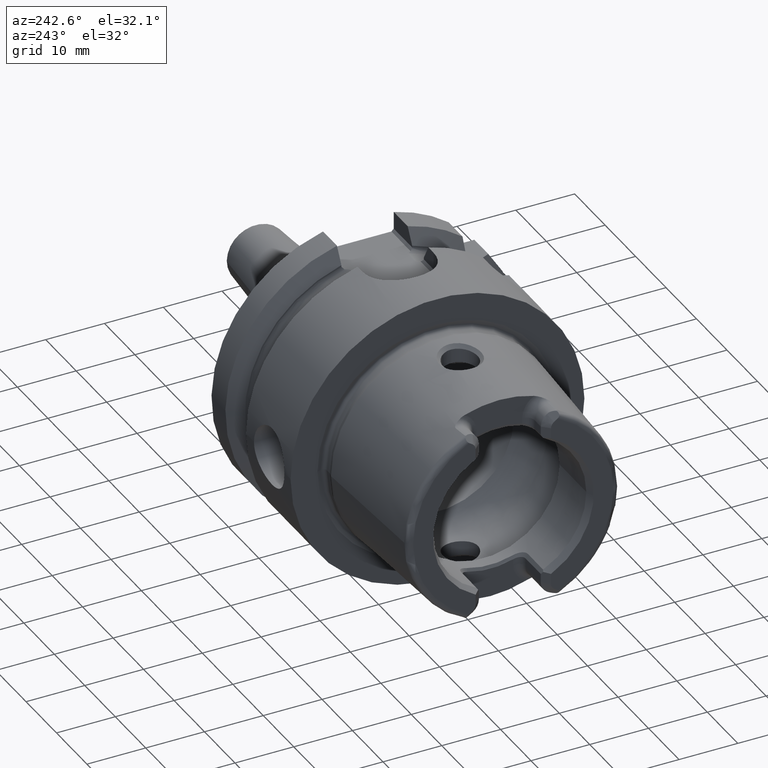
[diagram: clean part render]
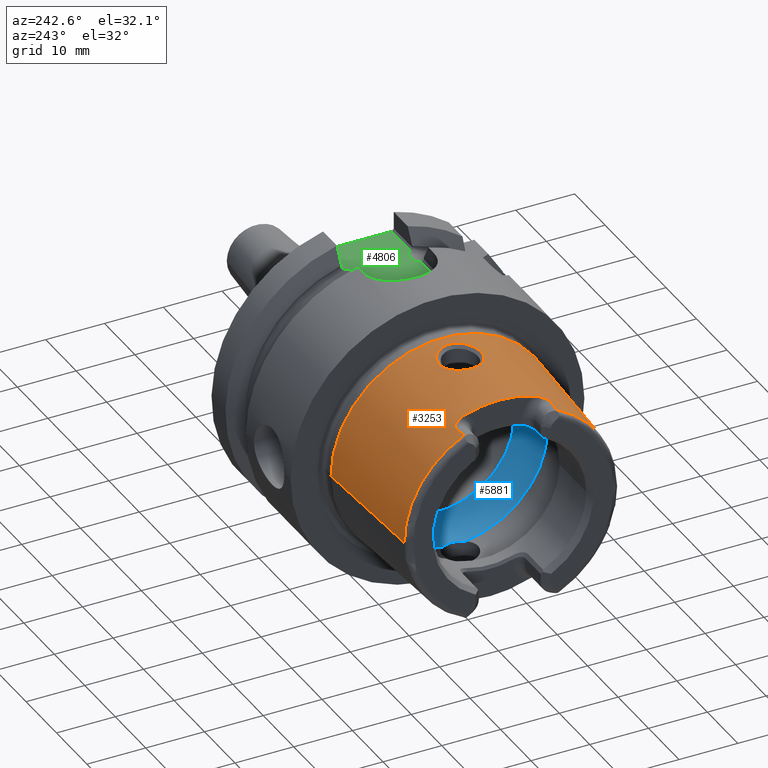
[diagram: same view with three faces highlighted in distinct colors, each labeled with its STEP entity id]
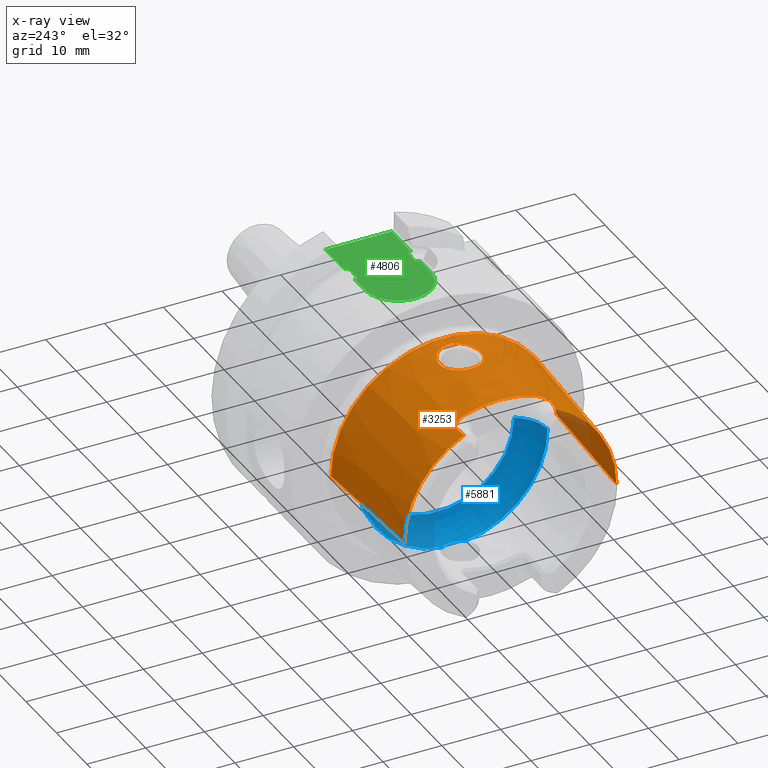
[diagram: x-ray of the same camera — body ghosted, the three highlighted faces saturated]
A machine part, auxiliary view with three faces highlighted in distinct colors.
The next image is the same camera in x-ray (body ghosted, the three faces saturated) — at least one of them is partly hidden behind the body in this view.
Their STEP definitions:

[orange] entity #3253 — the highlighted conical surface has half-angle 2.868 deg.
#2=CARTESIAN_POINT('',(-2.395003724237E1,-7.848512546022E0,1.626E1));
#3=CARTESIAN_POINT('',(-2.357924685714E1,-7.891247063705E0,1.626E1));
#4=CARTESIAN_POINT('',(-2.283344964494E1,-7.976635944030E0,1.626E1));
#5=CARTESIAN_POINT('',(-2.207922143332E1,-8.061880664518E0,1.626E1));
#6=CARTESIAN_POINT('',(-2.17E1,-8.104470797584E0,1.626E1));
#8=CARTESIAN_POINT('',(-2.03E1,0.E0,0.E0));
#9=DIRECTION('',(1.E0,0.E0,0.E0));
#10=DIRECTION('',(0.E0,3.252089046527E-1,9.456421988969E-1));
#11=AXIS2_PLACEMENT_3D('',#8,#9,#10);
#13=CARTESIAN_POINT('',(-2.17E1,8.104470797584E0,1.626E1));
#14=CARTESIAN_POINT('',(-2.207921342399E1,8.061881564041E0,1.626E1));
#15=CARTESIAN_POINT('',(-2.283343362880E1,7.976637765712E0,1.626E1));
#16=CARTESIAN_POINT('',(-2.357923885045E1,7.891247986496E0,1.626E1));
#17=CARTESIAN_POINT('',(-2.395003724237E1,7.848512546022E0,1.626E1));
#19=CARTESIAN_POINT('',(-2.E0,0.E0,0.E0));
#20=DIRECTION('',(1.E0,0.E0,0.E0));
#21=DIRECTION('',(0.E0,1.E0,0.E0));
#22=AXIS2_PLACEMENT_3D('',#19,#20,#21);
#24=CARTESIAN_POINT('',(-1.109929870960E1,-3.014221416256E-9,1.869887476944E1));
#25=CARTESIAN_POINT('',(-1.109945925242E1,1.886319535952E-1,1.869886672624E1));
#26=CARTESIAN_POINT('',(-1.107009168020E1,5.664763956957E-1,1.869480469033E1));
#27=CARTESIAN_POINT('',(-1.092852645341E1,1.148622081174E0,1.867514320096E1));
#28=CARTESIAN_POINT('',(-1.068761462296E1,1.704920402697E0,1.864430827966E1));
#29=CARTESIAN_POINT('',(-1.035800427398E1,2.210391705650E0,1.860721858945E1));
#30=CARTESIAN_POINT('',(-9.956571457299E0,2.646528342491E0,1.856998438485E1));
#31=CARTESIAN_POINT('',(-9.482180445587E0,3.015935220411E0,1.853715943967E1));
#32=CARTESIAN_POINT('',(-8.954999291132E0,3.300109899598E0,1.851503858938E1));
#33=CARTESIAN_POINT('',(-8.389140640557E0,3.493968846930E0,1.850796335816E1));
#34=CARTESIAN_POINT('',(-7.797320683708E0,3.593006921983E0,1.851902489885E1));
#35=CARTESIAN_POINT('',(-7.195102304437E0,3.593647232189E0,1.854964302437E1));
#36=CARTESIAN_POINT('',(-6.600491430740E0,3.495005174178E0,1.859898554839E1));
#37=CARTESIAN_POINT('',(-6.030596486868E0,3.299291684191E0,1.866403807124E1));
#38=CARTESIAN_POINT('',(-5.501482393751E0,3.011836541822E0,1.873990477193E1));
#39=CARTESIAN_POINT('',(-5.029104687073E0,2.639928583606E0,1.882027271501E1));
#40=CARTESIAN_POINT('',(-4.631634616367E0,2.203529810045E0,1.889690659120E1));
#41=CARTESIAN_POINT('',(-4.305482049942E0,1.697229296807E0,1.896603905152E1));
#42=CARTESIAN_POINT('',(-4.067927972751E0,1.141444662126E0,1.901987475357E1));
#43=CARTESIAN_POINT('',(-3.929055735054E0,5.612533791160E-1,1.905280029071E1));
#44=CARTESIAN_POINT('',(-3.900610911648E0,1.865123193107E-1,1.905953154444E1));
#45=CARTESIAN_POINT('',(-3.900703803433E0,4.688328467960E-10,1.905952689056E1));
#47=CARTESIAN_POINT('',(-3.900703803433E0,4.688328467960E-10,1.905952689056E1));
#48=CARTESIAN_POINT('',(-3.900565316566E0,-1.869068172543E-1,1.905953382875E1));
#49=CARTESIAN_POINT('',(-3.929209078756E0,-5.619643930347E-1,1.905275967237E1));
#50=CARTESIAN_POINT('',(-4.067587416071E0,-1.139939244924E0,1.901996042633E1));
#51=CARTESIAN_POINT('',(-4.304083353262E0,-1.694649477574E0,1.896633950966E1));
#52=CARTESIAN_POINT('',(-4.630377715431E0,-2.202039946174E0,1.889716591493E1));
#53=CARTESIAN_POINT('',(-5.030592742710E0,-2.641727212383E0,1.881996573115E1));
#54=CARTESIAN_POINT('',(-5.506115942833E0,-3.014998208087E0,1.873916244837E1));
#55=CARTESIAN_POINT('',(-6.036759347171E0,-3.302003787672E0,1.866323991975E1));
#56=CARTESIAN_POINT('',(-6.606224693834E0,-3.496380993107E0,1.859843104427E1));
#57=CARTESIAN_POINT('',(-7.200154597760E0,-3.594034785278E0,1.854930943768E1));
#58=CARTESIAN_POINT('',(-7.802229994140E0,-3.592594248023E0,1.851885498035E1));
#59=CARTESIAN_POINT('',(-8.394131860627E0,-3.492723564974E0,1.850794649148E1));
#60=CARTESIAN_POINT('',(-8.959854335096E0,-3.297955703516E0,1.851517847778E1));
#61=CARTESIAN_POINT('',(-9.485898814950E0,-3.013450655427E0,1.853737508929E1));
#62=CARTESIAN_POINT('',(-9.958289131427E0,-2.644672127726E0,1.857015107163E1));
#63=CARTESIAN_POINT('',(-1.035781579914E1,-2.210534337623E0,1.860719549656E1));
#64=CARTESIAN_POINT('',(-1.068684091883E1,-1.706221052324E0,1.864422260745E1));
#65=CARTESIAN_POINT('',(-1.092821591145E1,-1.149779213026E0,1.867509790374E1));
#66=CARTESIAN_POINT('',(-1.107015122039E1,-5.663437022187E-1,1.869481438399E1));
#67=CARTESIAN_POINT('',(-1.109940105467E1,-1.885312797170E-1,1.869886964195E1));
#68=CARTESIAN_POINT('',(-1.109929870960E1,-3.014221416256E-9,1.869887476944E1));
#254=CARTESIAN_POINT('',(-2.088194182380E1,7.65E0,1.652387464585E1));
#255=CARTESIAN_POINT('',(-2.078252967156E1,7.507241224245E0,1.659545558861E1));
#256=CARTESIAN_POINT('',(-2.061118229026E1,7.217898198343E0,1.673432166657E1));
#257=CARTESIAN_POINT('',(-2.042453343151E1,6.765088338183E0,1.693246351741E1));
#258=CARTESIAN_POINT('',(-2.032087894102E1,6.330896569896E0,1.710473583165E1));
#259=CARTESIAN_POINT('',(-2.03E1,6.061283482817E0,1.720184088309E1));
#260=CARTESIAN_POINT('',(-2.03E1,5.931150246788E0,1.724659405422E1));
#317=CARTESIAN_POINT('',(-2.395003724237E1,0.E0,0.E0));
#318=DIRECTION('',(1.E0,0.E0,0.E0));
#319=DIRECTION('',(0.E0,1.E0,0.E0));
#320=AXIS2_PLACEMENT_3D('',#317,#318,#319);
#391=CARTESIAN_POINT('',(-2.395003724237E1,0.E0,0.E0));
#392=DIRECTION('',(1.E0,0.E0,0.E0));
#393=DIRECTION('',(0.E0,-4.346977410045E-1,9.005764120637E-1));
#394=AXIS2_PLACEMENT_3D('',#391,#392,#393);
#557=DIRECTION('',(-9.987473526255E-1,5.003724236654E-2,0.E0));
#558=VECTOR('',#557,2.197756738445E1);
#559=CARTESIAN_POINT('',(-2.E0,-1.91548E1,0.E0));
#560=LINE('',#559,#558);
#566=DIRECTION('',(-9.987473526255E-1,-5.003724236654E-2,0.E0));
#567=VECTOR('',#566,2.197756738445E1);
#568=CARTESIAN_POINT('',(-2.E0,1.91548E1,0.E0));
#569=LINE('',#568,#567);
#2615=CARTESIAN_POINT('',(-2.03E1,-5.931150246788E0,1.724659405422E1));
#2616=CARTESIAN_POINT('',(-2.03E1,-6.061334007092E0,1.720182350766E1));
#2617=CARTESIAN_POINT('',(-2.032090311364E1,-6.331072330559E0,
1.710467013439E1));
#2618=CARTESIAN_POINT('',(-2.042460969072E1,-6.765396673643E0,
1.693234067442E1));
#2619=CARTESIAN_POINT('',(-2.061156183678E1,-7.218659036027E0,
1.673397288432E1));
#2620=CARTESIAN_POINT('',(-2.078273524221E1,-7.507536429743E0,
1.659530756908E1));
#2621=CARTESIAN_POINT('',(-2.088194182380E1,-7.65E0,1.652387464585E1));
#2693=CARTESIAN_POINT('',(-2.088194182380E1,-7.65E0,1.652387464585E1));
#2694=CARTESIAN_POINT('',(-2.092084236684E1,-7.705862324432E0,
1.649586461405E1));
#2695=CARTESIAN_POINT('',(-2.100216211286E1,-7.807981545915E0,
1.644339247740E1));
#2696=CARTESIAN_POINT('',(-2.113409150154E1,-7.931926358997E0,
1.637652980081E1));
#2697=CARTESIAN_POINT('',(-2.127636416926E1,-8.025677176369E0,
1.632276786529E1));
#2698=CARTESIAN_POINT('',(-2.142000730447E1,-8.084211699040E0,
1.628576763274E1));
#2699=CARTESIAN_POINT('',(-2.155951099500E1,-8.110794838366E0,
1.626471314411E1));
#2700=CARTESIAN_POINT('',(-2.165342169015E1,-8.109701979792E0,1.626E1));
#2701=CARTESIAN_POINT('',(-2.17E1,-8.104470797584E0,1.626E1));
#2711=CARTESIAN_POINT('',(-2.17E1,8.104470797584E0,1.626E1));
#2712=CARTESIAN_POINT('',(-2.164341871280E1,8.110825408214E0,1.626E1));
#2713=CARTESIAN_POINT('',(-2.152922643185E1,8.110130493423E0,1.626674474105E1));
#2714=CARTESIAN_POINT('',(-2.135380007883E1,8.063783507483E0,1.629963066121E1));
#2715=CARTESIAN_POINT('',(-2.118690630545E1,7.973411379162E0,1.635344174223E1));
#2716=CARTESIAN_POINT('',(-2.102599266022E1,7.836188133821E0,1.642872288676E1));
#2717=CARTESIAN_POINT('',(-2.092846952965E1,7.716815154647E0,1.649037273512E1));
#2718=CARTESIAN_POINT('',(-2.088194182380E1,7.65E0,1.652387464585E1));
#2736=CARTESIAN_POINT('',(-2.E0,1.91548E1,0.E0));
#2737=CARTESIAN_POINT('',(-2.E0,-1.91548E1,0.E0));
#2738=VERTEX_POINT('',#2736);
#2739=VERTEX_POINT('',#2737);
#2740=CARTESIAN_POINT('',(-2.395003724237E1,1.805510313416E1,0.E0));
#2741=VERTEX_POINT('',#2740);
#2742=CARTESIAN_POINT('',(-2.395003724237E1,-1.805510313416E1,0.E0));
#2743=VERTEX_POINT('',#2742);
#2756=CARTESIAN_POINT('',(-2.395003724237E1,7.848512546022E0,1.626E1));
#2757=VERTEX_POINT('',#2756);
#2758=CARTESIAN_POINT('',(-2.395003724237E1,-7.848512546022E0,1.626E1));
#2759=VERTEX_POINT('',#2758);
#2772=CARTESIAN_POINT('',(-2.03E1,5.931150246788E0,1.724659405422E1));
#2773=VERTEX_POINT('',#2772);
#2776=CARTESIAN_POINT('',(-2.17E1,8.104470797584E0,1.626E1));
#2777=VERTEX_POINT('',#2776);
#2778=CARTESIAN_POINT('',(-2.03E1,-5.931150246788E0,1.724659405422E1));
#2779=VERTEX_POINT('',#2778);
#2782=CARTESIAN_POINT('',(-2.17E1,-8.104470797584E0,1.626E1));
#2783=VERTEX_POINT('',#2782);
#2784=VERTEX_POINT('',#2718);
#2785=VERTEX_POINT('',#2693);
#3070=VERTEX_POINT('',#24);
#3071=VERTEX_POINT('',#45);
#3216=CARTESIAN_POINT('',(-1.297501862118E1,0.E0,0.E0));
#3217=DIRECTION('',(1.E0,0.E0,0.E0));
#3218=DIRECTION('',(0.E0,-1.E0,0.E0));
#3219=AXIS2_PLACEMENT_3D('',#3216,#3217,#3218);
#3220=CONICAL_SURFACE('',#3219,1.860495156708E1,2.868120487315E0);
#3222=ORIENTED_EDGE('',*,*,#3221,.T.);
#3224=ORIENTED_EDGE('',*,*,#3223,.F.);
#3226=ORIENTED_EDGE('',*,*,#3225,.F.);
#3228=ORIENTED_EDGE('',*,*,#3227,.F.);
#3230=ORIENTED_EDGE('',*,*,#3229,.F.);
#3232=ORIENTED_EDGE('',*,*,#3231,.F.);
#3234=ORIENTED_EDGE('',*,*,#3233,.T.);
#3236=ORIENTED_EDGE('',*,*,#3235,.F.);
#3238=ORIENTED_EDGE('',*,*,#3237,.F.);
#3240=ORIENTED_EDGE('',*,*,#3239,.T.);
#3242=ORIENTED_EDGE('',*,*,#3241,.T.);
#3244=ORIENTED_EDGE('',*,*,#3243,.F.);
#3245=EDGE_LOOP('',(#3222,#3224,#3226,#3228,#3230,#3232,#3234,#3236,#3238,#3240,
#3242,#3244));
#3246=FACE_OUTER_BOUND('',#3245,.F.);
#3248=ORIENTED_EDGE('',*,*,#3247,.F.);
#3250=ORIENTED_EDGE('',*,*,#3249,.F.);
#3251=EDGE_LOOP('',(#3248,#3250));
#3252=FACE_BOUND('',#3251,.F.);
#3253=ADVANCED_FACE('',(#3246,#3252),#3220,.T.);
#7=B_SPLINE_CURVE_WITH_KNOTS('',3,(#2,#3,#4,#5,#6),.UNSPECIFIED.,.F.,.F.,(4,1,
4),(0.E0,5.E-1,1.E0),.UNSPECIFIED.);
#12=CIRCLE('',#11,1.823797E1);
#18=B_SPLINE_CURVE_WITH_KNOTS('',3,(#13,#14,#15,#16,#17),.UNSPECIFIED.,.F.,.F.,(
4,1,4),(0.E0,5.E-1,1.E0),.UNSPECIFIED.);
#23=CIRCLE('',#22,1.91548E1);
#46=B_SPLINE_CURVE_WITH_KNOTS('',3,(#24,#25,#26,#27,#28,#29,#30,#31,#32,#33,#34,
#35,#36,#37,#38,#39,#40,#41,#42,#43,#44,#45),.UNSPECIFIED.,.F.,.F.,(4,1,1,1,1,1,
1,1,1,1,1,1,1,1,1,1,1,1,1,4),(0.E0,5.263157894737E-2,1.052631578947E-1,
1.578947368421E-1,2.105263157895E-1,2.631578947368E-1,3.157894736842E-1,
3.684210526316E-1,4.210526315789E-1,4.736842105263E-1,5.263157894737E-1,
5.789473684211E-1,6.315789473684E-1,6.842105263158E-1,7.368421052632E-1,
7.894736842105E-1,8.421052631579E-1,8.947368421053E-1,9.473684210526E-1,1.E0),
.UNSPECIFIED.);
#69=B_SPLINE_CURVE_WITH_KNOTS('',3,(#47,#48,#49,#50,#51,#52,#53,#54,#55,#56,#57,
#58,#59,#60,#61,#62,#63,#64,#65,#66,#67,#68),.UNSPECIFIED.,.F.,.F.,(4,1,1,1,1,1,
1,1,1,1,1,1,1,1,1,1,1,1,1,4),(0.E0,5.263157894737E-2,1.052631578947E-1,
1.578947368421E-1,2.105263157895E-1,2.631578947368E-1,3.157894736842E-1,
3.684210526316E-1,4.210526315789E-1,4.736842105263E-1,5.263157894737E-1,
5.789473684211E-1,6.315789473684E-1,6.842105263158E-1,7.368421052632E-1,
7.894736842105E-1,8.421052631579E-1,8.947368421053E-1,9.473684210526E-1,1.E0),
.UNSPECIFIED.);
#261=B_SPLINE_CURVE_WITH_KNOTS('',3,(#254,#255,#256,#257,#258,#259,#260),
.UNSPECIFIED.,.F.,.F.,(4,1,1,1,4),(0.E0,2.5E-1,5.E-1,7.5E-1,1.E0),
.UNSPECIFIED.);
#321=CIRCLE('',#320,1.805510313416E1);
#395=CIRCLE('',#394,1.805510313416E1);
#2622=B_SPLINE_CURVE_WITH_KNOTS('',3,(#2615,#2616,#2617,#2618,#2619,#2620,
#2621),.UNSPECIFIED.,.F.,.F.,(4,1,1,1,4),(0.E0,2.5E-1,5.E-1,7.5E-1,1.E0),
.UNSPECIFIED.);
#2702=B_SPLINE_CURVE_WITH_KNOTS('',3,(#2693,#2694,#2695,#2696,#2697,#2698,#2699,
#2700,#2701),.UNSPECIFIED.,.F.,.F.,(4,1,1,1,1,1,4),(0.E0,1.666666666667E-1,
3.333333333333E-1,5.E-1,6.666666666667E-1,8.333333333333E-1,1.E0),
.UNSPECIFIED.);
#2719=B_SPLINE_CURVE_WITH_KNOTS('',3,(#2711,#2712,#2713,#2714,#2715,#2716,#2717,
#2718),.UNSPECIFIED.,.F.,.F.,(4,1,1,1,1,4),(0.E0,2.E-1,4.E-1,6.E-1,8.E-1,1.E0),
.UNSPECIFIED.);
#3221=EDGE_CURVE('',#2759,#2783,#7,.T.);
#3223=EDGE_CURVE('',#2785,#2783,#2702,.T.);
#3225=EDGE_CURVE('',#2779,#2785,#2622,.T.);
#3227=EDGE_CURVE('',#2773,#2779,#12,.T.);
#3229=EDGE_CURVE('',#2784,#2773,#261,.T.);
#3231=EDGE_CURVE('',#2777,#2784,#2719,.T.);
#3233=EDGE_CURVE('',#2777,#2757,#18,.T.);
#3235=EDGE_CURVE('',#2741,#2757,#321,.T.);
#3237=EDGE_CURVE('',#2738,#2741,#569,.T.);
#3239=EDGE_CURVE('',#2738,#2739,#23,.T.);
#3241=EDGE_CURVE('',#2739,#2743,#560,.T.);
#3243=EDGE_CURVE('',#2759,#2743,#395,.T.);
#3247=EDGE_CURVE('',#3070,#3071,#46,.T.);
#3249=EDGE_CURVE('',#3071,#3070,#69,.T.);

[blue] entity #5881 — the highlighted toroidal blend (fillet) surface has major radius 10.04 mm and minor (blend) radius 6 mm.
#2241=CARTESIAN_POINT('',(-5.207075858867E0,0.E0,0.E0));
#2242=DIRECTION('',(-1.E0,0.E0,0.E0));
#2243=DIRECTION('',(0.E0,-1.206080999702E-1,-9.927001995676E-1));
#2244=AXIS2_PLACEMENT_3D('',#2241,#2242,#2243);
#2254=CARTESIAN_POINT('',(-5.207075858867E0,0.E0,0.E0));
#2255=DIRECTION('',(-1.E0,0.E0,0.E0));
#2256=DIRECTION('',(0.E0,1.E0,0.E0));
#2257=AXIS2_PLACEMENT_3D('',#2254,#2255,#2256);
#2259=CARTESIAN_POINT('',(-5.207075858867E0,1.934553923521E0,
-1.592291120106E1));
#2260=CARTESIAN_POINT('',(-5.118824210050E0,1.829953925761E0,
-1.593561957666E1));
#2261=CARTESIAN_POINT('',(-4.955339216306E0,1.607057846558E0,
-1.595667111021E1));
#2262=CARTESIAN_POINT('',(-4.756013687200E0,1.237072947635E0,
-1.597759816412E1));
#2263=CARTESIAN_POINT('',(-4.608446533562E0,8.366068361804E-1,
-1.599033856812E1));
#2264=CARTESIAN_POINT('',(-4.519381773364E0,4.192588342496E-1,
-1.599688809406E1));
#2265=CARTESIAN_POINT('',(-4.5E0,1.393160811055E-1,-1.599819131363E1));
#2266=CARTESIAN_POINT('',(-4.5E0,0.E0,-1.599819131363E1));
#2268=CARTESIAN_POINT('',(-5.207075858867E0,1.004E1,0.E0));
#2269=DIRECTION('',(0.E0,0.E0,1.E0));
#2270=DIRECTION('',(8.678459764779E-1,4.968333333333E-1,0.E0));
#2271=AXIS2_PLACEMENT_3D('',#2268,#2269,#2270);
#2273=CARTESIAN_POINT('',(0.E0,0.E0,0.E0));
#2274=DIRECTION('',(-1.E0,0.E0,0.E0));
#2275=DIRECTION('',(0.E0,1.E0,0.E0));
#2276=AXIS2_PLACEMENT_3D('',#2273,#2274,#2275);
#2278=CARTESIAN_POINT('',(-5.207075858867E0,-1.004E1,0.E0));
#2279=DIRECTION('',(0.E0,0.E0,-1.E0));
#2280=DIRECTION('',(8.678459764779E-1,-4.968333333333E-1,0.E0));
#2281=AXIS2_PLACEMENT_3D('',#2278,#2279,#2280);
#2283=CARTESIAN_POINT('',(-4.5E0,0.E0,-1.599819131363E1));
#2284=CARTESIAN_POINT('',(-4.5E0,-1.392836551494E-1,-1.599819131363E1));
#2285=CARTESIAN_POINT('',(-4.519369128421E0,-4.191839914949E-1,
-1.599688908511E1));
#2286=CARTESIAN_POINT('',(-4.608445858898E0,-8.365987177972E-1,
-1.599033833422E1));
#2287=CARTESIAN_POINT('',(-4.755995653741E0,-1.237064902814E0,
-1.597760082811E1));
#2288=CARTESIAN_POINT('',(-4.955551470065E0,-1.607407742941E0,
-1.595664715424E1));
#2289=CARTESIAN_POINT('',(-5.118938063898E0,-1.830088870687E0,
-1.593560318152E1));
#2290=CARTESIAN_POINT('',(-5.207075858867E0,-1.934553923521E0,
-1.592291120106E1));
#3084=CARTESIAN_POINT('',(-4.5E0,0.E0,-1.599819131363E1));
#3085=VERTEX_POINT('',#3084);
#3098=CARTESIAN_POINT('',(0.E0,1.3021E1,0.E0));
#3099=VERTEX_POINT('',#3098);
#3100=CARTESIAN_POINT('',(-5.207075858867E0,1.604E1,0.E0));
#3101=VERTEX_POINT('',#3100);
#3110=CARTESIAN_POINT('',(0.E0,-1.3021E1,0.E0));
#3111=VERTEX_POINT('',#3110);
#3112=CARTESIAN_POINT('',(-5.207075858867E0,-1.604E1,0.E0));
#3113=VERTEX_POINT('',#3112);
#3132=VERTEX_POINT('',#2259);
#3133=VERTEX_POINT('',#2290);
#5866=CARTESIAN_POINT('',(-5.207075858867E0,0.E0,0.E0));
#5867=DIRECTION('',(1.E0,0.E0,0.E0));
#5868=DIRECTION('',(0.E0,-1.E0,0.E0));
#5869=AXIS2_PLACEMENT_3D('',#5866,#5867,#5868);
#5870=TOROIDAL_SURFACE('',#5869,1.004E1,6.E0);
#5871=ORIENTED_EDGE('',*,*,#5804,.F.);
#5872=ORIENTED_EDGE('',*,*,#5861,.F.);
#5873=ORIENTED_EDGE('',*,*,#5823,.F.);
#5875=ORIENTED_EDGE('',*,*,#5874,.T.);
#5876=ORIENTED_EDGE('',*,*,#5819,.T.);
#5877=ORIENTED_EDGE('',*,*,#5855,.F.);
#5878=ORIENTED_EDGE('',*,*,#5576,.F.);
#5879=EDGE_LOOP('',(#5871,#5872,#5873,#5875,#5876,#5877,#5878));
#5880=FACE_OUTER_BOUND('',#5879,.F.);
#5881=ADVANCED_FACE('',(#5880),#5870,.F.);
#2245=CIRCLE('',#2244,1.604E1);
#2258=CIRCLE('',#2257,1.604E1);
#2267=B_SPLINE_CURVE_WITH_KNOTS('',3,(#2259,#2260,#2261,#2262,#2263,#2264,#2265,
#2266),.UNSPECIFIED.,.F.,.F.,(4,1,1,1,1,4),(0.E0,2.E-1,4.E-1,6.E-1,8.E-1,1.E0),
.UNSPECIFIED.);
#2272=CIRCLE('',#2271,6.E0);
#2277=CIRCLE('',#2276,1.3021E1);
#2282=CIRCLE('',#2281,6.E0);
#2291=B_SPLINE_CURVE_WITH_KNOTS('',3,(#2283,#2284,#2285,#2286,#2287,#2288,#2289,
#2290),.UNSPECIFIED.,.F.,.F.,(4,1,1,1,1,4),(0.E0,2.E-1,4.E-1,6.E-1,8.E-1,1.E0),
.UNSPECIFIED.);
#5576=EDGE_CURVE('',#3085,#3133,#2291,.T.);
#5804=EDGE_CURVE('',#3132,#3085,#2267,.T.);
#5819=EDGE_CURVE('',#3111,#3113,#2282,.T.);
#5823=EDGE_CURVE('',#3099,#3101,#2272,.T.);
#5855=EDGE_CURVE('',#3133,#3113,#2245,.T.);
#5861=EDGE_CURVE('',#3101,#3132,#2258,.T.);
#5874=EDGE_CURVE('',#3099,#3111,#2277,.T.);

[green] entity #4806 — the highlighted planar face has unit normal (0, 0, 1).
#1243=DIRECTION('',(-1.E0,0.E0,0.E0));
#1244=VECTOR('',#1243,2.325E0);
#1245=CARTESIAN_POINT('',(1.91625E1,4.936154880066E0,2.09E1));
#1246=LINE('',#1245,#1244);
#1256=DIRECTION('',(1.E0,0.E0,0.E0));
#1257=VECTOR('',#1256,2.325E0);
#1258=CARTESIAN_POINT('',(1.68375E1,-4.936154880066E0,2.09E1));
#1259=LINE('',#1258,#1257);
#1499=CARTESIAN_POINT('',(1.68375E1,4.936154880066E0,2.09E1));
#1500=CARTESIAN_POINT('',(1.681506439560E1,4.936154880066E0,2.09E1));
#1501=CARTESIAN_POINT('',(1.677123088673E1,4.944673497632E0,2.09E1));
#1502=CARTESIAN_POINT('',(1.670637256749E1,4.982476421130E0,2.09E1));
#1503=CARTESIAN_POINT('',(1.664900590224E1,5.036748664290E0,2.09E1));
#1504=CARTESIAN_POINT('',(1.659405185059E1,5.106990956188E0,2.09E1));
#1505=CARTESIAN_POINT('',(1.654315187720E1,5.189091223446E0,2.09E1));
#1506=CARTESIAN_POINT('',(1.649561034933E1,5.280901992625E0,2.09E1));
#1507=CARTESIAN_POINT('',(1.645046741239E1,5.382525577117E0,2.09E1));
#1508=CARTESIAN_POINT('',(1.640725659792E1,5.494029910782E0,2.09E1));
#1509=CARTESIAN_POINT('',(1.637953976626E1,5.575217300602E0,2.09E1));
#1510=CARTESIAN_POINT('',(1.636596485273E1,5.6175E0,2.09E1));
#1512=CARTESIAN_POINT('',(1.963403514727E1,5.6175E0,2.09E1));
#1513=CARTESIAN_POINT('',(1.962121105487E1,5.577555933860E0,2.09E1));
#1514=CARTESIAN_POINT('',(1.959433966091E1,5.498305669547E0,2.09E1));
#1515=CARTESIAN_POINT('',(1.954802760583E1,5.378400607294E0,2.09E1));
#1516=CARTESIAN_POINT('',(1.949825271637E1,5.267721187528E0,2.09E1));
#1517=CARTESIAN_POINT('',(1.944679938215E1,5.171347555465E0,2.09E1));
#1518=CARTESIAN_POINT('',(1.939476256373E1,5.091349730416E0,2.09E1));
#1519=CARTESIAN_POINT('',(1.934209978086E1,5.027407982916E0,2.09E1));
#1520=CARTESIAN_POINT('',(1.928722183018E1,4.978138118530E0,2.09E1));
#1521=CARTESIAN_POINT('',(1.922686285427E1,4.944417861259E0,2.09E1));
#1522=CARTESIAN_POINT('',(1.918440943347E1,4.936154880066E0,2.09E1));
#1523=CARTESIAN_POINT('',(1.91625E1,4.936154880066E0,2.09E1));
#1525=DIRECTION('',(1.E0,0.E0,0.E0));
#1526=VECTOR('',#1525,6.315964852731E0);
#1527=CARTESIAN_POINT('',(1.963403514727E1,5.6175E0,2.09E1));
#1528=LINE('',#1527,#1526);
#1529=DIRECTION('',(-1.E0,0.E0,0.E0));
#1530=VECTOR('',#1529,6.315964852731E0);
#1531=CARTESIAN_POINT('',(2.595E1,-5.6175E0,2.09E1));
#1532=LINE('',#1531,#1530);
#1533=CARTESIAN_POINT('',(1.91625E1,-4.936154880066E0,2.09E1));
#1534=CARTESIAN_POINT('',(1.918512572534E1,-4.936154880066E0,2.09E1));
#1535=CARTESIAN_POINT('',(1.922927798714E1,-4.944905345685E0,2.09E1));
#1536=CARTESIAN_POINT('',(1.929364299727E1,-4.982466702461E0,2.09E1));
#1537=CARTESIAN_POINT('',(1.935193358380E1,-5.037701592377E0,2.09E1));
#1538=CARTESIAN_POINT('',(1.940696398688E1,-5.108493844033E0,2.09E1));
#1539=CARTESIAN_POINT('',(1.945754115550E1,-5.190349964585E0,2.09E1));
#1540=CARTESIAN_POINT('',(1.950483688118E1,-5.281854502074E0,2.09E1));
#1541=CARTESIAN_POINT('',(1.954984677491E1,-5.383296798535E0,2.09E1));
#1542=CARTESIAN_POINT('',(1.959291205605E1,-5.494511889336E0,2.09E1));
#1543=CARTESIAN_POINT('',(1.962051721705E1,-5.575394790376E0,2.09E1));
#1544=CARTESIAN_POINT('',(1.963403514727E1,-5.6175E0,2.09E1));
#1546=CARTESIAN_POINT('',(1.636596485273E1,-5.6175E0,2.09E1));
#1547=CARTESIAN_POINT('',(1.637723073093E1,-5.582409408806E0,2.09E1));
#1548=CARTESIAN_POINT('',(1.640088079254E1,-5.512208770329E0,2.09E1));
#1549=CARTESIAN_POINT('',(1.644127677987E1,-5.405169222578E0,2.09E1));
#1550=CARTESIAN_POINT('',(1.648542523065E1,-5.302559468502E0,2.09E1));
#1551=CARTESIAN_POINT('',(1.653267499575E1,-5.208006963190E0,2.09E1));
#1552=CARTESIAN_POINT('',(1.658270514026E1,-5.123923103323E0,2.09E1));
#1553=CARTESIAN_POINT('',(1.663659931211E1,-5.050897729353E0,2.09E1));
#1554=CARTESIAN_POINT('',(1.669594649704E1,-4.990432118684E0,2.09E1));
#1555=CARTESIAN_POINT('',(1.676415776210E1,-4.946912528541E0,2.09E1));
#1556=CARTESIAN_POINT('',(1.681240342288E1,-4.936154880066E0,2.09E1));
#1557=CARTESIAN_POINT('',(1.68375E1,-4.936154880066E0,2.09E1));
#1559=DIRECTION('',(-1.E0,-7.852701927823E-8,-7.858421558079E-8));
#1560=VECTOR('',#1559,3.398464844756E0);
#1561=CARTESIAN_POINT('',(1.636596485273E1,-5.6175E0,2.09E1));
#1562=LINE('',#1561,#1560);
#1563=CARTESIAN_POINT('',(1.29675E1,0.E0,2.089999824116E1));
#1564=DIRECTION('',(0.E0,0.E0,-1.E0));
#1565=DIRECTION('',(0.E0,-1.E0,0.E0));
#1566=AXIS2_PLACEMENT_3D('',#1563,#1564,#1565);
#1568=DIRECTION('',(1.E0,-7.853913086518E-8,7.857210474843E-8));
#1569=VECTOR('',#1568,3.398464845393E0);
#1570=CARTESIAN_POINT('',(1.296750000734E1,5.617500266912E0,2.089999973298E1));
#1571=LINE('',#1570,#1569);
#1701=DIRECTION('',(0.E0,1.E0,0.E0));
#1702=VECTOR('',#1701,1.1235E1);
#1703=CARTESIAN_POINT('',(2.595E1,-5.6175E0,2.09E1));
#1704=LINE('',#1703,#1702);
#2960=CARTESIAN_POINT('',(1.68375E1,-4.936154880066E0,2.09E1));
#2962=VERTEX_POINT('',#2960);
#2963=CARTESIAN_POINT('',(1.68375E1,4.936154880066E0,2.09E1));
#2965=VERTEX_POINT('',#2963);
#2968=CARTESIAN_POINT('',(1.91625E1,-4.936154880066E0,2.09E1));
#2970=VERTEX_POINT('',#2968);
#2971=CARTESIAN_POINT('',(1.91625E1,4.936154880066E0,2.09E1));
#2973=VERTEX_POINT('',#2971);
#2977=VERTEX_POINT('',#1510);
#2978=VERTEX_POINT('',#1546);
#2979=VERTEX_POINT('',#1512);
#2980=VERTEX_POINT('',#1544);
#3004=CARTESIAN_POINT('',(1.29675E1,-5.617499842972E0,2.089999824116E1));
#3005=CARTESIAN_POINT('',(1.29675E1,5.617499842972E0,2.089999824116E1));
#3006=VERTEX_POINT('',#3004);
#3007=VERTEX_POINT('',#3005);
#3016=CARTESIAN_POINT('',(2.595E1,-5.6175E0,2.09E1));
#3018=VERTEX_POINT('',#3016);
#3021=CARTESIAN_POINT('',(2.595E1,5.6175E0,2.09E1));
#3023=VERTEX_POINT('',#3021);
#4781=CARTESIAN_POINT('',(0.E0,0.E0,2.09E1));
#4782=DIRECTION('',(0.E0,0.E0,1.E0));
#4783=DIRECTION('',(1.E0,0.E0,0.E0));
#4784=AXIS2_PLACEMENT_3D('',#4781,#4782,#4783);
#4785=PLANE('',#4784);
#4786=ORIENTED_EDGE('',*,*,#4546,.F.);
#4787=ORIENTED_EDGE('',*,*,#4565,.F.);
#4789=ORIENTED_EDGE('',*,*,#4788,.F.);
#4790=ORIENTED_EDGE('',*,*,#4776,.T.);
#4792=ORIENTED_EDGE('',*,*,#4791,.F.);
#4794=ORIENTED_EDGE('',*,*,#4793,.T.);
#4796=ORIENTED_EDGE('',*,*,#4795,.F.);
#4797=ORIENTED_EDGE('',*,*,#4578,.F.);
#4798=ORIENTED_EDGE('',*,*,#4529,.F.);
#4800=ORIENTED_EDGE('',*,*,#4799,.T.);
#4802=ORIENTED_EDGE('',*,*,#4801,.T.);
#4803=ORIENTED_EDGE('',*,*,#4758,.T.);
#4804=EDGE_LOOP('',(#4786,#4787,#4789,#4790,#4792,#4794,#4796,#4797,#4798,#4800,
#4802,#4803));
#4805=FACE_OUTER_BOUND('',#4804,.F.);
#4806=ADVANCED_FACE('',(#4805),#4785,.T.);
#1511=B_SPLINE_CURVE_WITH_KNOTS('',3,(#1499,#1500,#1501,#1502,#1503,#1504,#1505,
#1506,#1507,#1508,#1509,#1510),.UNSPECIFIED.,.F.,.F.,(4,1,1,1,1,1,1,1,1,4),
(0.E0,1.111111111111E-1,2.222222222222E-1,3.333333333333E-1,4.444444444444E-1,
5.555555555556E-1,6.666666666667E-1,7.777777777778E-1,8.888888888889E-1,1.E0),
.UNSPECIFIED.);
#1524=B_SPLINE_CURVE_WITH_KNOTS('',3,(#1512,#1513,#1514,#1515,#1516,#1517,#1518,
#1519,#1520,#1521,#1522,#1523),.UNSPECIFIED.,.F.,.F.,(4,1,1,1,1,1,1,1,1,4),
(0.E0,1.111111111111E-1,2.222222222222E-1,3.333333333333E-1,4.444444444444E-1,
5.555555555556E-1,6.666666666667E-1,7.777777777778E-1,8.888888888889E-1,1.E0),
.UNSPECIFIED.);
#1545=B_SPLINE_CURVE_WITH_KNOTS('',3,(#1533,#1534,#1535,#1536,#1537,#1538,#1539,
#1540,#1541,#1542,#1543,#1544),.UNSPECIFIED.,.F.,.F.,(4,1,1,1,1,1,1,1,1,4),
(0.E0,1.111111111111E-1,2.222222222222E-1,3.333333333333E-1,4.444444444444E-1,
5.555555555556E-1,6.666666666667E-1,7.777777777778E-1,8.888888888889E-1,1.E0),
.UNSPECIFIED.);
#1558=B_SPLINE_CURVE_WITH_KNOTS('',3,(#1546,#1547,#1548,#1549,#1550,#1551,#1552,
#1553,#1554,#1555,#1556,#1557),.UNSPECIFIED.,.F.,.F.,(4,1,1,1,1,1,1,1,1,4),
(0.E0,1.111111111111E-1,2.222222222222E-1,3.333333333333E-1,4.444444444444E-1,
5.555555555556E-1,6.666666666667E-1,7.777777777778E-1,8.888888888889E-1,1.E0),
.UNSPECIFIED.);
#1567=CIRCLE('',#1566,5.617499842972E0);
#4529=EDGE_CURVE('',#2978,#2962,#1558,.T.);
#4546=EDGE_CURVE('',#2965,#2977,#1511,.T.);
#4565=EDGE_CURVE('',#2973,#2965,#1246,.T.);
#4578=EDGE_CURVE('',#2962,#2970,#1259,.T.);
#4758=EDGE_CURVE('',#3007,#2977,#1571,.T.);
#4776=EDGE_CURVE('',#2979,#3023,#1528,.T.);
#4788=EDGE_CURVE('',#2979,#2973,#1524,.T.);
#4791=EDGE_CURVE('',#3018,#3023,#1704,.T.);
#4793=EDGE_CURVE('',#3018,#2980,#1532,.T.);
#4795=EDGE_CURVE('',#2970,#2980,#1545,.T.);
#4799=EDGE_CURVE('',#2978,#3006,#1562,.T.);
#4801=EDGE_CURVE('',#3006,#3007,#1567,.T.);